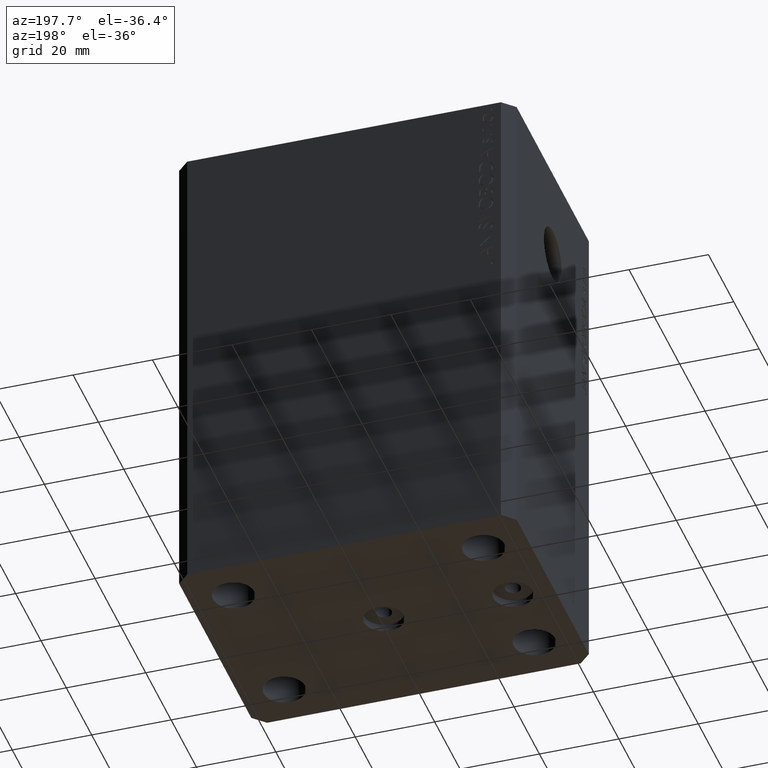
[diagram: clean part render]
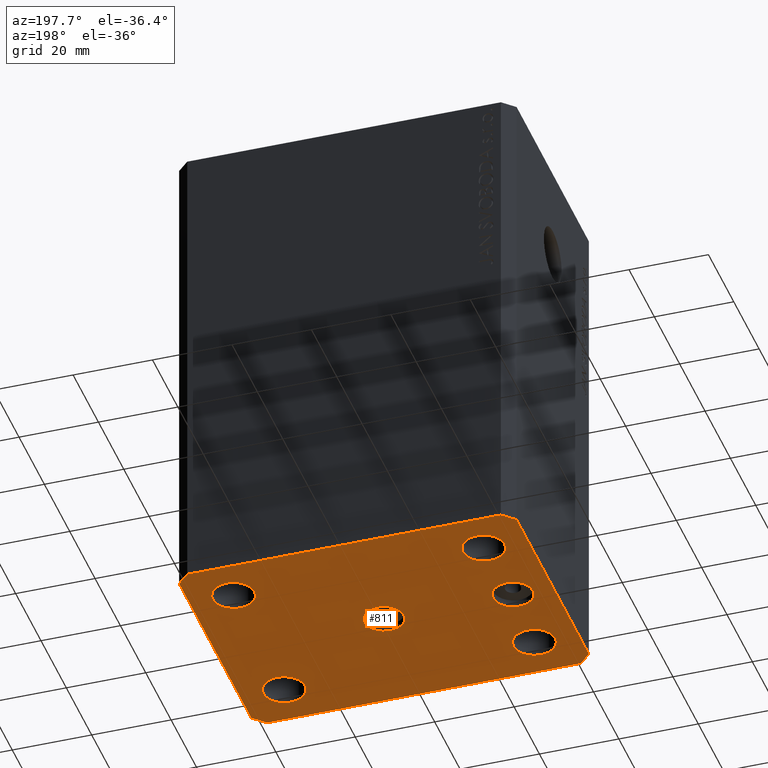
[diagram: same view with one face highlighted and labeled with its STEP entity id]
A machine part, auxiliary view. The second image highlights one B-rep face of the part: STEP entity #811.
In plain terms, the highlighted planar face has unit normal (0, 0, 1).
Its self-contained STEP definition (entity closure, byte-faithful):
#367 = DIRECTION ( 'NONE',  ( 0.000000000000000000, 0.000000000000000000, 1.000000000000000000 ) ) ;
#506 = EDGE_CURVE ( 'NONE', #16138, #15550, #22475, .T. ) ;
#551 = DIRECTION ( 'NONE',  ( 8.886653596232072440E-15, 1.000000000000000000, 0.000000000000000000 ) ) ;
#788 = EDGE_CURVE ( 'NONE', #15550, #36978, #10501, .T. ) ;
#793 = FACE_BOUND ( 'NONE', #7549, .T. ) ;
#811 = ADVANCED_FACE ( 'NONE', ( #793, #31658, #27862, #20873, #27643, #34613, #7333 ), #17478, .F. ) ;
#861 = AXIS2_PLACEMENT_3D ( 'NONE', #38257, #10975, #21119 ) ;
#1213 = CIRCLE ( 'NONE', #19242, 5.250000000000000888 ) ;
#1424 = CARTESIAN_POINT ( 'NONE',  ( -32.50000000000000000, 0.000000000000000000, -123.0000000000000000 ) ) ;
#1599 = EDGE_CURVE ( 'NONE', #33662, #15287, #1213, .T. ) ;
#1815 = DIRECTION ( 'NONE',  ( -1.000000000000000000, 0.000000000000000000, 0.000000000000000000 ) ) ;
#2036 = CIRCLE ( 'NONE', #12824, 5.249999999999997335 ) ;
#2087 = DIRECTION ( 'NONE',  ( -0.000000000000000000, -0.000000000000000000, -1.000000000000000000 ) ) ;
#2404 = DIRECTION ( 'NONE',  ( 1.000000000000000000, 0.000000000000000000, 0.000000000000000000 ) ) ;
#2451 = DIRECTION ( 'NONE',  ( -0.000000000000000000, -0.000000000000000000, -1.000000000000000000 ) ) ;
#2614 = ORIENTED_EDGE ( 'NONE', *, *, #15338, .F. ) ;
#2638 = ORIENTED_EDGE ( 'NONE', *, *, #31855, .F. ) ;
#2662 = VERTEX_POINT ( 'NONE', #3815 ) ;
#2741 = CARTESIAN_POINT ( 'NONE',  ( -42.50000000000000000, -28.50000000000000000, -123.0000000000000000 ) ) ;
#3082 = VERTEX_POINT ( 'NONE', #23337 ) ;
#3089 = CARTESIAN_POINT ( 'NONE',  ( -42.50000000000000000, 28.50000000000000000, -123.0000000000000000 ) ) ;
#3386 = VERTEX_POINT ( 'NONE', #41682 ) ;
#3492 = CARTESIAN_POINT ( 'NONE',  ( 36.75000000000000000, 19.99999999999999289, -123.0000000000000000 ) ) ;
#3815 = CARTESIAN_POINT ( 'NONE',  ( -27.50000000000000355, 6.123233995736762338E-16, -123.0000000000000000 ) ) ;
#3930 = DIRECTION ( 'NONE',  ( 1.000000000000000000, 0.000000000000000000, 0.000000000000000000 ) ) ;
#4495 = LINE ( 'NONE', #42376, #25991 ) ;
#4731 = DIRECTION ( 'NONE',  ( 0.000000000000000000, 0.000000000000000000, -1.000000000000000000 ) ) ;
#6034 = CIRCLE ( 'NONE', #39132, 5.249999999999997335 ) ;
#6371 = DIRECTION ( 'NONE',  ( 1.000000000000000000, 0.000000000000000000, 0.000000000000000000 ) ) ;
#6383 = CIRCLE ( 'NONE', #38070, 5.000000000000000000 ) ;
#6608 = VECTOR ( 'NONE', #551, 1000.000000000000000 ) ;
#7111 = VERTEX_POINT ( 'NONE', #38088 ) ;
#7283 = AXIS2_PLACEMENT_3D ( 'NONE', #38194, #21278, #3930 ) ;
#7303 = EDGE_CURVE ( 'NONE', #7751, #9155, #35991, .T. ) ;
#7333 = FACE_OUTER_BOUND ( 'NONE', #20533, .T. ) ;
#7549 = EDGE_LOOP ( 'NONE', ( #10761, #23125 ) ) ;
#7751 = VERTEX_POINT ( 'NONE', #38210 ) ;
#7955 = DIRECTION ( 'NONE',  ( -1.000000000000000000, 0.000000000000000000, 0.000000000000000000 ) ) ;
#8011 = CARTESIAN_POINT ( 'NONE',  ( -31.49999999999999289, -20.00000000000000355, -123.0000000000000000 ) ) ;
#9155 = VERTEX_POINT ( 'NONE', #3492 ) ;
#9822 = ORIENTED_EDGE ( 'NONE', *, *, #41858, .F. ) ;
#9987 = EDGE_LOOP ( 'NONE', ( #13680, #25364 ) ) ;
#10184 = EDGE_CURVE ( 'NONE', #3082, #25564, #23120, .T. ) ;
#10278 = LINE ( 'NONE', #41600, #25476 ) ;
#10501 = LINE ( 'NONE', #10934, #43715 ) ;
#10761 = ORIENTED_EDGE ( 'NONE', *, *, #29546, .F. ) ;
#10934 = CARTESIAN_POINT ( 'NONE',  ( -42.50000000000000000, -28.50000000000000000, -123.0000000000000000 ) ) ;
#10975 = DIRECTION ( 'NONE',  ( -0.000000000000000000, -0.000000000000000000, -1.000000000000000000 ) ) ;
#11065 = EDGE_LOOP ( 'NONE', ( #15099, #42009 ) ) ;
#11800 = VERTEX_POINT ( 'NONE', #30550 ) ;
#12174 = VECTOR ( 'NONE', #1815, 1000.000000000000000 ) ;
#12717 = CARTESIAN_POINT ( 'NONE',  ( -36.75000000000000000, 19.99999999999999645, -123.0000000000000000 ) ) ;
#12742 = ORIENTED_EDGE ( 'NONE', *, *, #1599, .F. ) ;
#12824 = AXIS2_PLACEMENT_3D ( 'NONE', #16605, #30353, #2404 ) ;
#13023 = DIRECTION ( 'NONE',  ( -1.000000000000000000, 0.000000000000000000, 0.000000000000000000 ) ) ;
#13427 = VERTEX_POINT ( 'NONE', #35139 ) ;
#13680 = ORIENTED_EDGE ( 'NONE', *, *, #10184, .F. ) ;
#13862 = CARTESIAN_POINT ( 'NONE',  ( 36.74999999999999289, -20.00000000000000355, -123.0000000000000000 ) ) ;
#14076 = EDGE_CURVE ( 'NONE', #16570, #3386, #10278, .T. ) ;
#14616 = DIRECTION ( 'NONE',  ( 0.000000000000000000, 0.000000000000000000, -1.000000000000000000 ) ) ;
#14714 = DIRECTION ( 'NONE',  ( 0.000000000000000000, 0.000000000000000000, -1.000000000000000000 ) ) ;
#15099 = ORIENTED_EDGE ( 'NONE', *, *, #30870, .F. ) ;
#15287 = VERTEX_POINT ( 'NONE', #32723 ) ;
#15338 = EDGE_CURVE ( 'NONE', #9155, #7751, #6034, .T. ) ;
#15550 = VERTEX_POINT ( 'NONE', #2741 ) ;
#16138 = VERTEX_POINT ( 'NONE', #3089 ) ;
#16254 = CARTESIAN_POINT ( 'NONE',  ( 39.50000000000056843, 31.50000000000000000, -123.0000000000000000 ) ) ;
#16564 = AXIS2_PLACEMENT_3D ( 'NONE', #30620, #2451, #44387 ) ;
#16565 = DIRECTION ( 'NONE',  ( 1.000000000000000000, 0.000000000000000000, 0.000000000000000000 ) ) ;
#16570 = VERTEX_POINT ( 'NONE', #31395 ) ;
#16605 = CARTESIAN_POINT ( 'NONE',  ( 31.49999999999999289, -20.00000000000000355, -123.0000000000000000 ) ) ;
#16751 = VERTEX_POINT ( 'NONE', #38495 ) ;
#16768 = CARTESIAN_POINT ( 'NONE',  ( -39.50000000000000711, -31.50000000000000000, -123.0000000000000000 ) ) ;
#17462 = ORIENTED_EDGE ( 'NONE', *, *, #19999, .F. ) ;
#17478 = PLANE ( 'NONE',  #43011 ) ;
#17877 = CIRCLE ( 'NONE', #40199, 5.000000000000000000 ) ;
#17878 = DIRECTION ( 'NONE',  ( -1.000000000000000000, 0.000000000000000000, 0.000000000000000000 ) ) ;
#18088 = DIRECTION ( 'NONE',  ( 0.000000000000000000, 0.000000000000000000, -1.000000000000000000 ) ) ;
#19014 = ORIENTED_EDGE ( 'NONE', *, *, #34483, .F. ) ;
#19217 = CARTESIAN_POINT ( 'NONE',  ( -31.49999999999999289, -20.00000000000000355, -123.0000000000000000 ) ) ;
#19242 = AXIS2_PLACEMENT_3D ( 'NONE', #19217, #2087, #29808 ) ;
#19257 = ORIENTED_EDGE ( 'NONE', *, *, #788, .F. ) ;
#19276 = CIRCLE ( 'NONE', #38700, 5.249999999999997335 ) ;
#19657 = CARTESIAN_POINT ( 'NONE',  ( -26.24999999999999289, -20.00000000000000355, -123.0000000000000000 ) ) ;
#19892 = CARTESIAN_POINT ( 'NONE',  ( -39.50000000000000711, -31.50000000000000000, -123.0000000000000000 ) ) ;
#19999 = EDGE_CURVE ( 'NONE', #2662, #32020, #27758, .T. ) ;
#20003 = CIRCLE ( 'NONE', #40170, 5.250000000000000888 ) ;
#20311 = CIRCLE ( 'NONE', #861, 5.250000000000000888 ) ;
#20427 = DIRECTION ( 'NONE',  ( 0.7071067811865483499, 0.7071067811865466846, 0.000000000000000000 ) ) ;
#20432 = DIRECTION ( 'NONE',  ( 1.000000000000000000, 0.000000000000000000, -0.000000000000000000 ) ) ;
#20533 = EDGE_LOOP ( 'NONE', ( #19014, #39820, #9822, #25630, #25453, #19257, #29230, #31980 ) ) ;
#20873 = FACE_BOUND ( 'NONE', #11065, .T. ) ;
#21119 = DIRECTION ( 'NONE',  ( 1.000000000000000000, 0.000000000000000000, 0.000000000000000000 ) ) ;
#21266 = EDGE_LOOP ( 'NONE', ( #2638, #17462 ) ) ;
#21278 = DIRECTION ( 'NONE',  ( -0.000000000000000000, -0.000000000000000000, -1.000000000000000000 ) ) ;
#21701 = CARTESIAN_POINT ( 'NONE',  ( 0.000000000000000000, 0.000000000000000000, -123.0000000000000000 ) ) ;
#21885 = ORIENTED_EDGE ( 'NONE', *, *, #7303, .F. ) ;
#22162 = LINE ( 'NONE', #25110, #6608 ) ;
#22171 = CIRCLE ( 'NONE', #38013, 4.999999999999997335 ) ;
#22287 = EDGE_LOOP ( 'NONE', ( #12742, #40954 ) ) ;
#22475 = LINE ( 'NONE', #42538, #44425 ) ;
#22950 = VERTEX_POINT ( 'NONE', #16254 ) ;
#23120 = CIRCLE ( 'NONE', #7283, 5.250000000000000888 ) ;
#23125 = ORIENTED_EDGE ( 'NONE', *, *, #33817, .F. ) ;
#23337 = CARTESIAN_POINT ( 'NONE',  ( -26.25000000000000000, 19.99999999999999645, -123.0000000000000000 ) ) ;
#24211 = DIRECTION ( 'NONE',  ( -0.7071067811865356934, 0.7071067811865594521, 0.000000000000000000 ) ) ;
#24699 = CARTESIAN_POINT ( 'NONE',  ( 0.000000000000000000, 0.000000000000000000, -123.0000000000000000 ) ) ;
#24783 = CARTESIAN_POINT ( 'NONE',  ( -32.50000000000000000, 0.000000000000000000, -123.0000000000000000 ) ) ;
#24998 = DIRECTION ( 'NONE',  ( -1.000000000000000000, 0.000000000000000000, 0.000000000000000000 ) ) ;
#25110 = CARTESIAN_POINT ( 'NONE',  ( 42.50000000000000711, -28.50000000000000355, -123.0000000000000000 ) ) ;
#25364 = ORIENTED_EDGE ( 'NONE', *, *, #43701, .F. ) ;
#25453 = ORIENTED_EDGE ( 'NONE', *, *, #31086, .F. ) ;
#25476 = VECTOR ( 'NONE', #20427, 1000.000000000000000 ) ;
#25564 = VERTEX_POINT ( 'NONE', #12717 ) ;
#25630 = ORIENTED_EDGE ( 'NONE', *, *, #14076, .F. ) ;
#25987 = DIRECTION ( 'NONE',  ( -0.000000000000000000, -0.000000000000000000, -1.000000000000000000 ) ) ;
#25991 = VECTOR ( 'NONE', #39446, 1000.000000000000000 ) ;
#26414 = EDGE_CURVE ( 'NONE', #32338, #22950, #28453, .T. ) ;
#26621 = CARTESIAN_POINT ( 'NONE',  ( 42.50000000000051870, 28.49999999999995381, -123.0000000000000000 ) ) ;
#26908 = EDGE_CURVE ( 'NONE', #15287, #33662, #20003, .T. ) ;
#27122 = CARTESIAN_POINT ( 'NONE',  ( -37.50000000000000000, 0.000000000000000000, -123.0000000000000000 ) ) ;
#27643 = FACE_BOUND ( 'NONE', #38761, .T. ) ;
#27732 = EDGE_CURVE ( 'NONE', #13427, #42892, #2036, .T. ) ;
#27758 = CIRCLE ( 'NONE', #30648, 4.999999999999997335 ) ;
#27862 = FACE_BOUND ( 'NONE', #22287, .T. ) ;
#28453 = LINE ( 'NONE', #38160, #35096 ) ;
#29230 = ORIENTED_EDGE ( 'NONE', *, *, #506, .F. ) ;
#29546 = EDGE_CURVE ( 'NONE', #16751, #11800, #6383, .T. ) ;
#29808 = DIRECTION ( 'NONE',  ( 1.000000000000000000, 0.000000000000000000, 0.000000000000000000 ) ) ;
#30353 = DIRECTION ( 'NONE',  ( -0.000000000000000000, -0.000000000000000000, -1.000000000000000000 ) ) ;
#30550 = CARTESIAN_POINT ( 'NONE',  ( 5.000000000000000000, 6.123233995736765296E-16, -123.0000000000000000 ) ) ;
#30620 = CARTESIAN_POINT ( 'NONE',  ( 31.50000000000000000, 19.99999999999999289, -123.0000000000000000 ) ) ;
#30648 = AXIS2_PLACEMENT_3D ( 'NONE', #24783, #14616, #24998 ) ;
#30702 = LINE ( 'NONE', #19892, #35910 ) ;
#30870 = EDGE_CURVE ( 'NONE', #42892, #13427, #19276, .T. ) ;
#31086 = EDGE_CURVE ( 'NONE', #36978, #16570, #30702, .T. ) ;
#31240 = DIRECTION ( 'NONE',  ( -0.000000000000000000, -0.000000000000000000, -1.000000000000000000 ) ) ;
#31395 = CARTESIAN_POINT ( 'NONE',  ( 39.50000000000000711, -31.50000000000000000, -123.0000000000000000 ) ) ;
#31658 = FACE_BOUND ( 'NONE', #21266, .T. ) ;
#31855 = EDGE_CURVE ( 'NONE', #32020, #2662, #22171, .T. ) ;
#31980 = ORIENTED_EDGE ( 'NONE', *, *, #39632, .F. ) ;
#32020 = VERTEX_POINT ( 'NONE', #27122 ) ;
#32237 = CARTESIAN_POINT ( 'NONE',  ( 39.50000000000056843, 31.50000000000000000, -123.0000000000000000 ) ) ;
#32338 = VERTEX_POINT ( 'NONE', #26621 ) ;
#32501 = DIRECTION ( 'NONE',  ( 1.000000000000000000, 0.000000000000000000, 0.000000000000000000 ) ) ;
#32723 = CARTESIAN_POINT ( 'NONE',  ( -36.74999999999999289, -20.00000000000000355, -123.0000000000000000 ) ) ;
#33662 = VERTEX_POINT ( 'NONE', #19657 ) ;
#33817 = EDGE_CURVE ( 'NONE', #11800, #16751, #17877, .T. ) ;
#34144 = CARTESIAN_POINT ( 'NONE',  ( 31.49999999999999289, -20.00000000000000355, -123.0000000000000000 ) ) ;
#34483 = EDGE_CURVE ( 'NONE', #22950, #7111, #35848, .T. ) ;
#34613 = FACE_BOUND ( 'NONE', #9987, .T. ) ;
#34789 = DIRECTION ( 'NONE',  ( -0.000000000000000000, -0.000000000000000000, -1.000000000000000000 ) ) ;
#35096 = VECTOR ( 'NONE', #24211, 1000.000000000000114 ) ;
#35139 = CARTESIAN_POINT ( 'NONE',  ( 26.24999999999999645, -20.00000000000000355, -123.0000000000000000 ) ) ;
#35848 = LINE ( 'NONE', #32237, #12174 ) ;
#35910 = VECTOR ( 'NONE', #6371, 1000.000000000000000 ) ;
#35991 = CIRCLE ( 'NONE', #16564, 5.249999999999997335 ) ;
#36909 = CARTESIAN_POINT ( 'NONE',  ( 0.000000000000000000, 0.000000000000000000, -123.0000000000000000 ) ) ;
#36978 = VERTEX_POINT ( 'NONE', #16768 ) ;
#38013 = AXIS2_PLACEMENT_3D ( 'NONE', #1424, #14714, #17878 ) ;
#38070 = AXIS2_PLACEMENT_3D ( 'NONE', #21701, #18088, #7955 ) ;
#38088 = CARTESIAN_POINT ( 'NONE',  ( -39.50000000000000711, 31.50000000000000000, -123.0000000000000000 ) ) ;
#38160 = CARTESIAN_POINT ( 'NONE',  ( 42.50000000000051870, 28.49999999999995381, -123.0000000000000000 ) ) ;
#38194 = CARTESIAN_POINT ( 'NONE',  ( -31.50000000000000000, 19.99999999999999645, -123.0000000000000000 ) ) ;
#38210 = CARTESIAN_POINT ( 'NONE',  ( 26.25000000000000355, 19.99999999999999289, -123.0000000000000000 ) ) ;
#38217 = DIRECTION ( 'NONE',  ( 0.7071067811865471286, -0.7071067811865479058, 0.000000000000000000 ) ) ;
#38257 = CARTESIAN_POINT ( 'NONE',  ( -31.50000000000000000, 19.99999999999999645, -123.0000000000000000 ) ) ;
#38442 = DIRECTION ( 'NONE',  ( 1.000000000000000000, 0.000000000000000000, 0.000000000000000000 ) ) ;
#38495 = CARTESIAN_POINT ( 'NONE',  ( -5.000000000000000000, 0.000000000000000000, -123.0000000000000000 ) ) ;
#38700 = AXIS2_PLACEMENT_3D ( 'NONE', #34144, #34789, #16565 ) ;
#38761 = EDGE_LOOP ( 'NONE', ( #2614, #21885 ) ) ;
#39132 = AXIS2_PLACEMENT_3D ( 'NONE', #39266, #25987, #32501 ) ;
#39266 = CARTESIAN_POINT ( 'NONE',  ( 31.50000000000000000, 19.99999999999999289, -123.0000000000000000 ) ) ;
#39380 = DIRECTION ( 'NONE',  ( 0.000000000000000000, -1.000000000000000000, 0.000000000000000000 ) ) ;
#39446 = DIRECTION ( 'NONE',  ( -0.7071067811865471286, -0.7071067811865479058, 0.000000000000000000 ) ) ;
#39632 = EDGE_CURVE ( 'NONE', #7111, #16138, #4495, .T. ) ;
#39820 = ORIENTED_EDGE ( 'NONE', *, *, #26414, .F. ) ;
#40170 = AXIS2_PLACEMENT_3D ( 'NONE', #8011, #31240, #38442 ) ;
#40199 = AXIS2_PLACEMENT_3D ( 'NONE', #36909, #4731, #13023 ) ;
#40954 = ORIENTED_EDGE ( 'NONE', *, *, #26908, .F. ) ;
#41600 = CARTESIAN_POINT ( 'NONE',  ( 39.50000000000000711, -31.50000000000000000, -123.0000000000000000 ) ) ;
#41682 = CARTESIAN_POINT ( 'NONE',  ( 42.50000000000000711, -28.50000000000000355, -123.0000000000000000 ) ) ;
#41858 = EDGE_CURVE ( 'NONE', #3386, #32338, #22162, .T. ) ;
#42009 = ORIENTED_EDGE ( 'NONE', *, *, #27732, .F. ) ;
#42376 = CARTESIAN_POINT ( 'NONE',  ( -39.50000000000000711, 31.50000000000000000, -123.0000000000000000 ) ) ;
#42538 = CARTESIAN_POINT ( 'NONE',  ( -42.50000000000000000, 28.50000000000000000, -123.0000000000000000 ) ) ;
#42892 = VERTEX_POINT ( 'NONE', #13862 ) ;
#43011 = AXIS2_PLACEMENT_3D ( 'NONE', #24699, #367, #20432 ) ;
#43701 = EDGE_CURVE ( 'NONE', #25564, #3082, #20311, .T. ) ;
#43715 = VECTOR ( 'NONE', #38217, 1000.000000000000000 ) ;
#44387 = DIRECTION ( 'NONE',  ( 1.000000000000000000, 0.000000000000000000, 0.000000000000000000 ) ) ;
#44425 = VECTOR ( 'NONE', #39380, 1000.000000000000000 ) ;